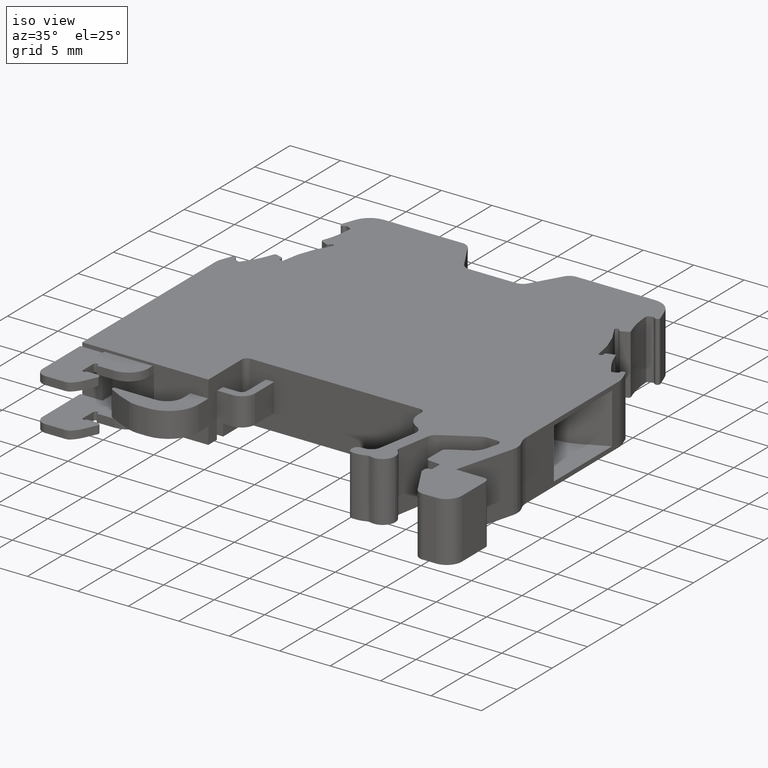
[diagram: clean part render]
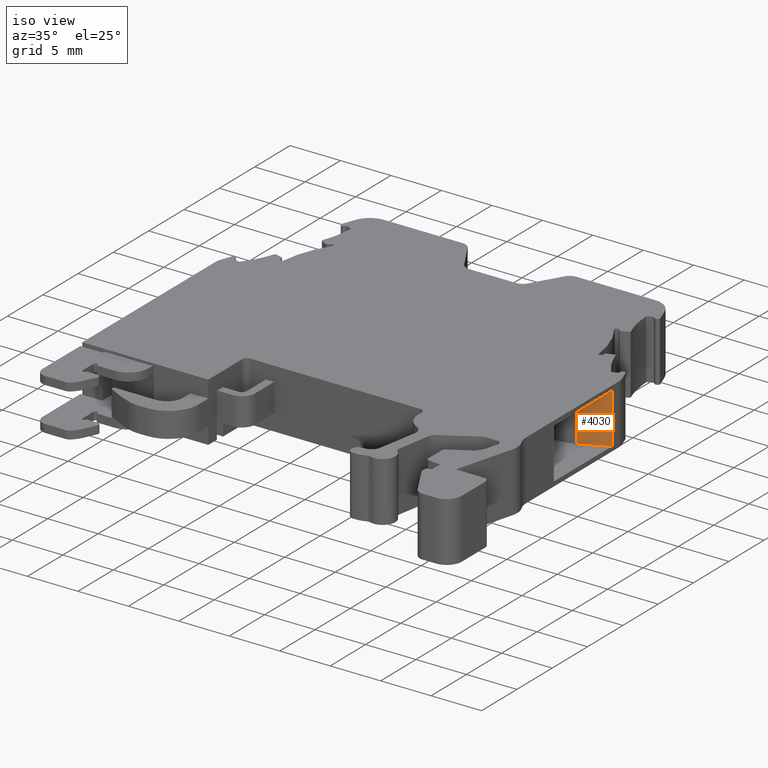
[diagram: same view with one face highlighted and labeled with its STEP entity id]
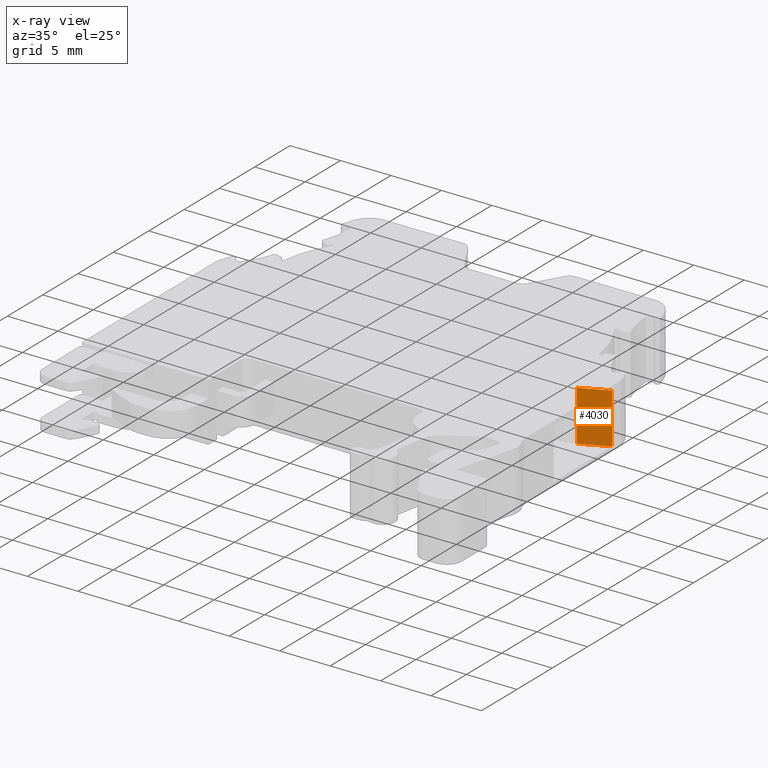
[diagram: x-ray of the same camera — body ghosted, the highlighted face saturated]
A machine part, iso view. The second image highlights one B-rep face of the part: STEP entity #4030.
The next image is the same camera in x-ray: the body ghosted, the highlighted face saturated — about 0% of this face is hidden behind the body in this view.
In plain terms, the highlighted planar face has unit normal (-0.4226, 0.9063, 0).
Its self-contained STEP definition (entity closure, byte-faithful):
#130 = EDGE_LOOP ( 'NONE', ( #5387, #5253, #5336, #5349 ) ) ;
#1017 = EDGE_CURVE ( 'NONE', #6166, #6144, #7982, .T. ) ;
#1033 = EDGE_CURVE ( 'NONE', #6167, #6157, #8102, .T. ) ;
#1043 = EDGE_CURVE ( 'NONE', #6166, #6157, #8166, .T. ) ;
#1057 = EDGE_CURVE ( 'NONE', #6167, #6144, #8154, .T. ) ;
#1312 = VECTOR ( 'NONE', #8123, 1000.000000000000000 ) ;
#1319 = VECTOR ( 'NONE', #7992, 1000.000000000000000 ) ;
#1325 = VECTOR ( 'NONE', #8160, 1000.000000000000100 ) ;
#1342 = VECTOR ( 'NONE', #8152, 1000.000000000000000 ) ;
#1756 = AXIS2_PLACEMENT_3D ( 'NONE', #5779, #5822, #5887 ) ;
#3467 = CARTESIAN_POINT ( 'NONE',  ( 1703.588777642433100, 349.0959341738900400, 2.400000000071787400 ) ) ;
#3477 = CARTESIAN_POINT ( 'NONE',  ( 1706.208854871626000, 350.3176953346056700, 2.400000000063899500 ) ) ;
#3499 = CARTESIAN_POINT ( 'NONE',  ( 1703.588777642433100, 349.0959341738899300, -2.599999999961355400 ) ) ;
#3503 = CARTESIAN_POINT ( 'NONE',  ( 1706.208856593908600, 350.3176960506567100, -2.599999999954637300 ) ) ;
#4030 = ADVANCED_FACE ( 'NONE', ( #5688 ), #5707, .F. ) ;
#5253 = ORIENTED_EDGE ( 'NONE', *, *, #1017, .F. ) ;
#5336 = ORIENTED_EDGE ( 'NONE', *, *, #1043, .T. ) ;
#5349 = ORIENTED_EDGE ( 'NONE', *, *, #1033, .F. ) ;
#5387 = ORIENTED_EDGE ( 'NONE', *, *, #1057, .T. ) ;
#5688 = FACE_OUTER_BOUND ( 'NONE', #130, .T. ) ;
#5707 = PLANE ( 'NONE',  #1756 ) ;
#5779 = CARTESIAN_POINT ( 'NONE',  ( 1706.208856606884900, 350.3176963947550500, -499996.7999999999900 ) ) ;
#5822 = DIRECTION ( 'NONE',  ( -0.4226180726217729800, 0.9063078752242297300, 6.950265222921657300E-016 ) ) ;
#5887 = DIRECTION ( 'NONE',  ( -0.9063078752242296200, -0.4226180726217729200, 0.0000000000000000000 ) ) ;
#6144 = VERTEX_POINT ( 'NONE', #3467 ) ;
#6157 = VERTEX_POINT ( 'NONE', #3503 ) ;
#6166 = VERTEX_POINT ( 'NONE', #3499 ) ;
#6167 = VERTEX_POINT ( 'NONE', #3477 ) ;
#7982 = LINE ( 'NONE', #7990, #1319 ) ;
#7990 = CARTESIAN_POINT ( 'NONE',  ( 1703.588777642286200, 349.0959341742054100, -499996.7999999999900 ) ) ;
#7992 = DIRECTION ( 'NONE',  ( 2.937307692721287400E-016, -6.299080106430983200E-016, 1.000000000000000000 ) ) ;
#8101 = CARTESIAN_POINT ( 'NONE',  ( 1706.208856593076000, 350.3176958677327100, -62.07273415799103600 ) ) ;
#8102 = LINE ( 'NONE', #8101, #1312 ) ;
#8123 = DIRECTION ( 'NONE',  ( 0.0000000000000000000, -0.0000000000000000000, -1.000000000000000000 ) ) ;
#8152 = DIRECTION ( 'NONE',  ( 0.9063078970432835200, 0.4226180258306323500, -1.500139512570214000E-015 ) ) ;
#8154 = LINE ( 'NONE', #8158, #1325 ) ;
#8158 = CARTESIAN_POINT ( 'NONE',  ( 1706.208856014921800, 350.3176958677328200, 2.400000000063899500 ) ) ;
#8159 = CARTESIAN_POINT ( 'NONE',  ( 1703.588777642433100, 349.0959341738900400, -2.599999999950085800 ) ) ;
#8160 = DIRECTION ( 'NONE',  ( -0.9063079084266056900, -0.4226180014190015800, 1.500139863867690700E-015 ) ) ;
#8166 = LINE ( 'NONE', #8159, #1342 ) ;